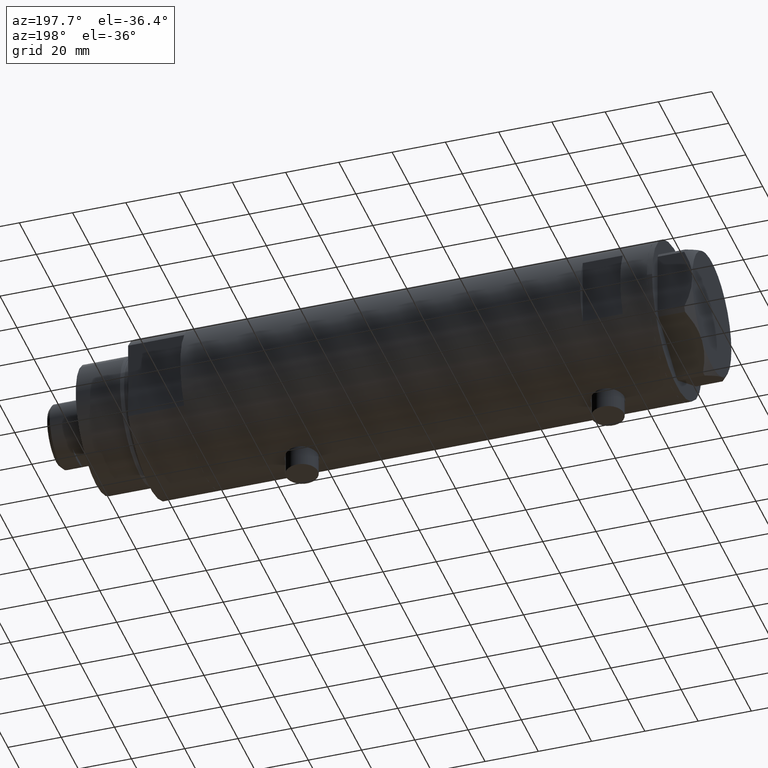
[diagram: clean part render]
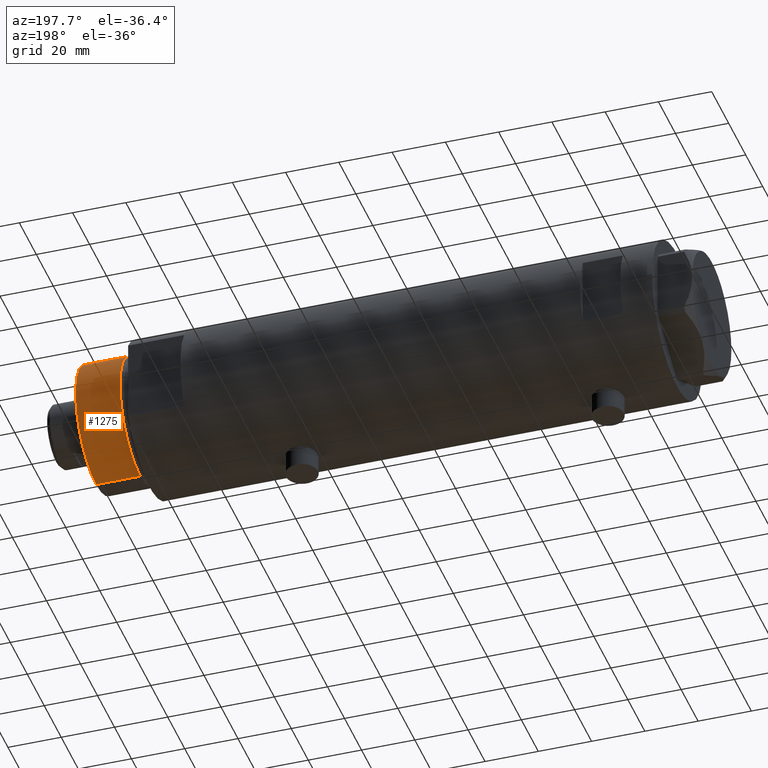
[diagram: same view with one face highlighted and labeled with its STEP entity id]
A machine part, auxiliary view. The second image highlights one B-rep face of the part: STEP entity #1275.
In plain terms, the highlighted cylindrical surface (partial cylindrical patch) has radius 24 mm, axis along (-1, -0, 0).
Its self-contained STEP definition (entity closure, byte-faithful):
#24 = DIRECTION ( 'NONE',  ( 0.000000000000000000, 0.000000000000000000, 1.000000000000000000 ) ) ;
#130 = CARTESIAN_POINT ( 'NONE',  ( 24.00000000000000355, 2.939152317953648289E-15, 41.00000000000000000 ) ) ;
#219 = CIRCLE ( 'NONE', #1758, 24.00000000000000355 ) ;
#258 = DIRECTION ( 'NONE',  ( -0.000000000000000000, -0.000000000000000000, -1.000000000000000000 ) ) ;
#305 = CYLINDRICAL_SURFACE ( 'NONE', #2548, 24.00000000000000355 ) ;
#316 = EDGE_CURVE ( 'NONE', #798, #2174, #2469, .T. ) ;
#517 = CARTESIAN_POINT ( 'NONE',  ( 24.00000000000000355, 2.939152317953648289E-15, 24.37384048104054557 ) ) ;
#578 = EDGE_CURVE ( 'NONE', #1989, #742, #219, .T. ) ;
#742 = VERTEX_POINT ( 'NONE', #1353 ) ;
#798 = VERTEX_POINT ( 'NONE', #130 ) ;
#802 = ORIENTED_EDGE ( 'NONE', *, *, #1104, .T. ) ;
#1019 = DIRECTION ( 'NONE',  ( -1.000000000000000000, 0.000000000000000000, 0.000000000000000000 ) ) ;
#1104 = EDGE_CURVE ( 'NONE', #798, #1989, #4036, .T. ) ;
#1223 = DIRECTION ( 'NONE',  ( 1.000000000000000000, 0.000000000000000000, 0.000000000000000000 ) ) ;
#1275 = ADVANCED_FACE ( 'NONE', ( #3395 ), #305, .T. ) ;
#1325 = VECTOR ( 'NONE', #258, 1000.000000000000000 ) ;
#1353 = CARTESIAN_POINT ( 'NONE',  ( -24.00000000000000355, 0.000000000000000000, 24.37384048104054557 ) ) ;
#1466 = DIRECTION ( 'NONE',  ( 1.000000000000000000, 0.000000000000000000, 0.000000000000000000 ) ) ;
#1496 = VECTOR ( 'NONE', #3306, 1000.000000000000000 ) ;
#1758 = AXIS2_PLACEMENT_3D ( 'NONE', #3984, #4302, #1223 ) ;
#1922 = LINE ( 'NONE', #2308, #1496 ) ;
#1989 = VERTEX_POINT ( 'NONE', #517 ) ;
#2174 = VERTEX_POINT ( 'NONE', #2392 ) ;
#2308 = CARTESIAN_POINT ( 'NONE',  ( -24.00000000000000355, 0.000000000000000000, 41.00000000000000000 ) ) ;
#2334 = CARTESIAN_POINT ( 'NONE',  ( 24.00000000000000355, 2.939152317953648289E-15, 41.00000000000000000 ) ) ;
#2392 = CARTESIAN_POINT ( 'NONE',  ( -24.00000000000000355, 0.000000000000000000, 41.00000000000000000 ) ) ;
#2469 = CIRCLE ( 'NONE', #2821, 24.00000000000000355 ) ;
#2546 = CARTESIAN_POINT ( 'NONE',  ( 0.000000000000000000, 0.000000000000000000, 41.00000000000000000 ) ) ;
#2548 = AXIS2_PLACEMENT_3D ( 'NONE', #3063, #4099, #1019 ) ;
#2588 = ORIENTED_EDGE ( 'NONE', *, *, #578, .T. ) ;
#2625 = ORIENTED_EDGE ( 'NONE', *, *, #3693, .F. ) ;
#2821 = AXIS2_PLACEMENT_3D ( 'NONE', #2546, #24, #1466 ) ;
#3063 = CARTESIAN_POINT ( 'NONE',  ( 0.000000000000000000, 0.000000000000000000, 41.00000000000000000 ) ) ;
#3306 = DIRECTION ( 'NONE',  ( -0.000000000000000000, -0.000000000000000000, -1.000000000000000000 ) ) ;
#3395 = FACE_OUTER_BOUND ( 'NONE', #3870, .T. ) ;
#3693 = EDGE_CURVE ( 'NONE', #2174, #742, #1922, .T. ) ;
#3870 = EDGE_LOOP ( 'NONE', ( #4056, #802, #2588, #2625 ) ) ;
#3984 = CARTESIAN_POINT ( 'NONE',  ( 0.000000000000000000, 0.000000000000000000, 24.37384048104054557 ) ) ;
#4036 = LINE ( 'NONE', #2334, #1325 ) ;
#4056 = ORIENTED_EDGE ( 'NONE', *, *, #316, .F. ) ;
#4099 = DIRECTION ( 'NONE',  ( -0.000000000000000000, -0.000000000000000000, -1.000000000000000000 ) ) ;
#4302 = DIRECTION ( 'NONE',  ( -0.000000000000000000, -0.000000000000000000, 1.000000000000000000 ) ) ;